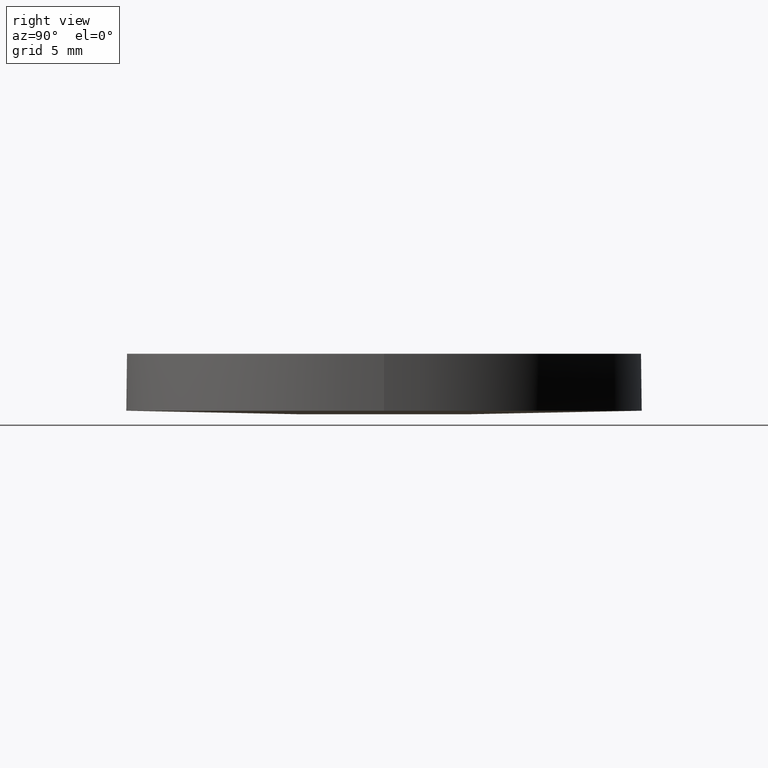
[diagram: clean part render]
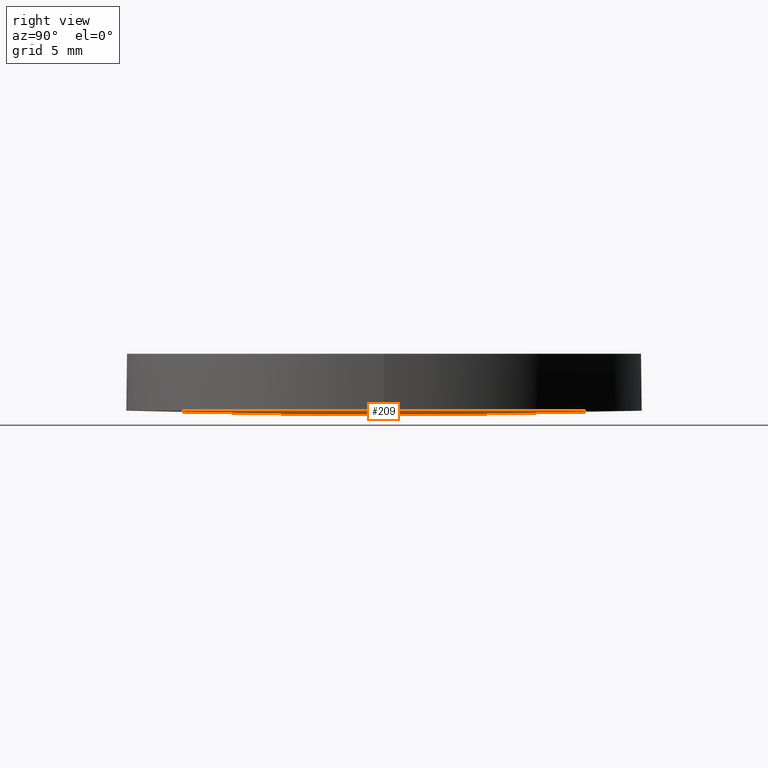
[diagram: same view with one face highlighted and labeled with its STEP entity id]
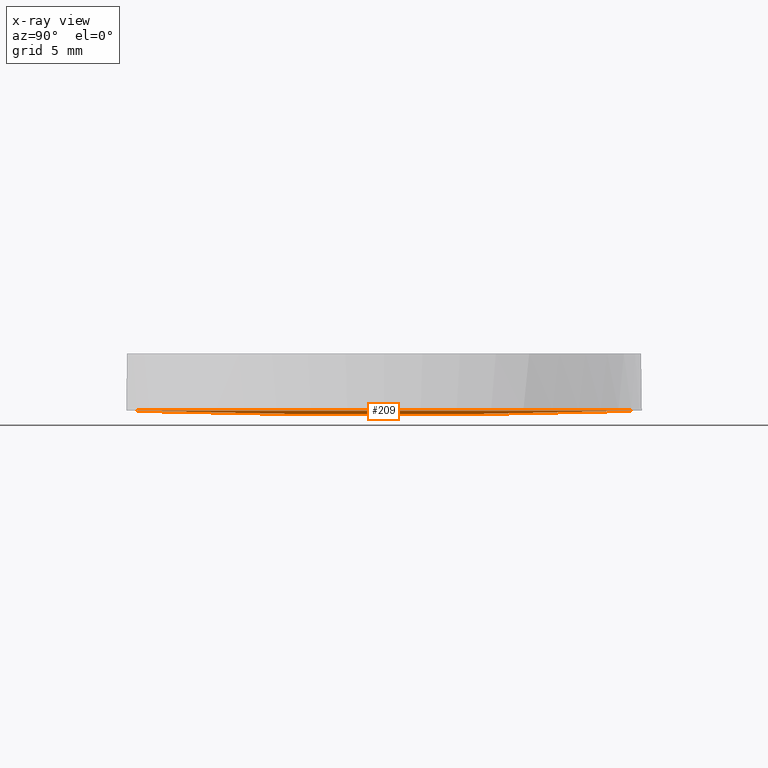
[diagram: x-ray of the same camera — body ghosted, the highlighted face saturated]
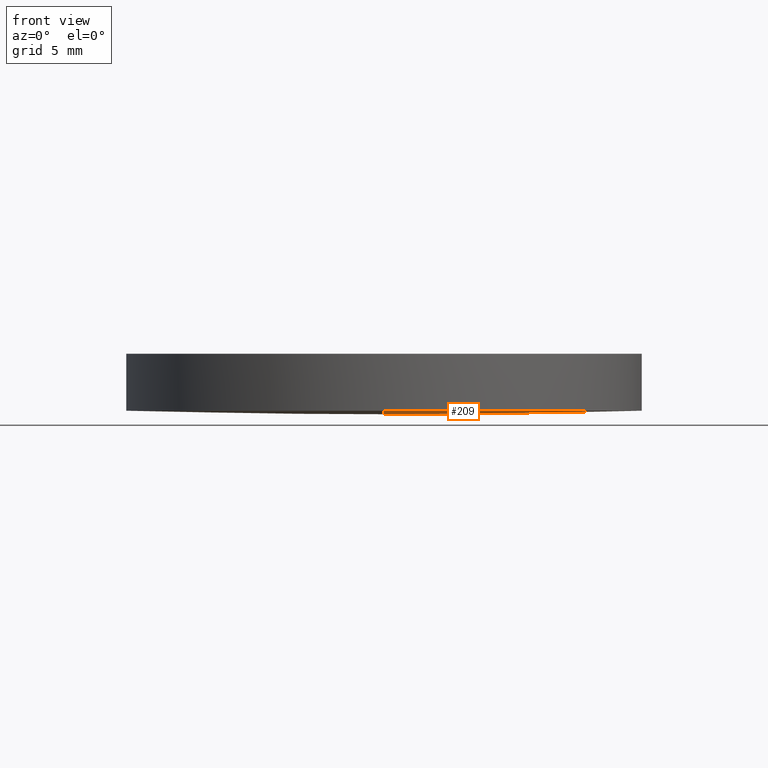
[diagram: same view with one face highlighted and labeled with its STEP entity id]
A machine part, right view. The second image highlights one B-rep face of the part: STEP entity #209.
The next image is the same camera in x-ray: the body ghosted, the highlighted face saturated — about 0% of this face is hidden behind the body in this view.
A second angle (front view) of the same face is appended — the face is thin or edge-on in the first view.
In plain terms, the highlighted face is a freeform B-spline surface patch.
Its self-contained STEP definition (entity closure, byte-faithful):
#1 = CARTESIAN_POINT ( 'NONE',  ( 12.69999999999999900, 2.442490654175340100E-015, 0.1943708192956540000 ) ) ;
#3 = EDGE_CURVE ( 'NONE', #42, #85, #97, .T. ) ;
#6 = DIRECTION ( 'NONE',  ( 2.800826601236829100E-016, -1.000000000000000000, 0.0000000000000000000 ) ) ;
#9 = CARTESIAN_POINT ( 'NONE',  ( 8.519990901291127000, 4.285487597691064500, -0.0007899738707676747800 ) ) ;
#26 = CARTESIAN_POINT ( 'NONE',  ( 4.257523415242414600, 12.85235154755344000, 0.1990633331476209800 ) ) ;
#27 = CARTESIAN_POINT ( 'NONE',  ( 12.77004763216025500, 12.85235154755343800, 0.3956790587314284500 ) ) ;
#31 = CARTESIAN_POINT ( 'NONE',  ( 1.561092886320984200E-013, 4.285487597691062700, -0.06637567002445760000 ) ) ;
#38 = DIRECTION ( 'NONE',  ( 1.000000000000000000, 0.0000000000000000000, 0.0000000000000000000 ) ) ;
#42 = VERTEX_POINT ( 'NONE', #127 ) ;
#60 = CARTESIAN_POINT ( 'NONE',  ( 4.257523415242421700, -12.85235154755348600, 0.1990633331476209800 ) ) ;
#77 = VERTEX_POINT ( 'NONE', #183 ) ;
#78 = CARTESIAN_POINT ( 'NONE',  ( 12.77821942835044700, 4.285487597691066200, 0.1303658736990742400 ) ) ;
#85 = VERTEX_POINT ( 'NONE', #1 ) ;
#90 = CIRCLE ( 'NONE', #163, 12.69999999999999900 ) ;
#91 = EDGE_CURVE ( 'NONE', #85, #77, #90, .T. ) ;
#95 = CARTESIAN_POINT ( 'NONE',  ( 4.260247885395269700, -4.285487597691111500, -0.06637567002445765600 ) ) ;
#97 = CIRCLE ( 'NONE', #157, 12.69999999999999900 ) ;
#102 = EDGE_CURVE ( 'NONE', #77, #42, #187, .T. ) ;
#106 = ORIENTED_EDGE ( 'NONE', *, *, #3, .T. ) ;
#115 =( BOUNDED_SURFACE ( )  B_SPLINE_SURFACE ( 3, 3, ( 
 ( #131, #60, #190, #212 ),
 ( #189, #95, #119, #134 ),
 ( #31, #173, #9, #78 ),
 ( #210, #26, #174, #27 ) ),
 .UNSPECIFIED., .F., .F., .T. ) 
 B_SPLINE_SURFACE_WITH_KNOTS ( ( 4, 4 ),
 ( 4, 4 ),
 ( 0.0000000000000000000, 1.000000000000000000 ),
 ( 0.0000000000000000000, 1.000000000000000000 ),
 .UNSPECIFIED. ) 
 GEOMETRIC_REPRESENTATION_ITEM ( )  RATIONAL_B_SPLINE_SURFACE ( (
 ( 1.000000000000000000, 0.9999209952859029500, 0.9999209952859029500, 1.000000000000000000),
 ( 0.9996802195451444100, 0.9996012400952107900, 0.9996012400952107900, 0.9996802195451444100),
 ( 0.9996802195451444100, 0.9996012400952107900, 0.9996012400952107900, 0.9996802195451444100),
 ( 1.000000000000000000, 0.9999209952859029500, 0.9999209952859029500, 1.000000000000000000) ) ) 
 REPRESENTATION_ITEM ( '' )  SURFACE ( )  );
#118 = ORIENTED_EDGE ( 'NONE', *, *, #91, .T. ) ;
#119 = CARTESIAN_POINT ( 'NONE',  ( 8.519990901291130600, -4.285487597691109800, -0.0007899738707687589900 ) ) ;
#124 = EDGE_LOOP ( 'NONE', ( #118, #172, #106 ) ) ;
#127 = CARTESIAN_POINT ( 'NONE',  ( 1.536894163389856000E-013, 12.69999999999961700, 0.1943708192956423200 ) ) ;
#131 = CARTESIAN_POINT ( 'NONE',  ( 1.608450511172748200E-013, -12.85235154755348600, 0.1990633331476199300 ) ) ;
#134 = CARTESIAN_POINT ( 'NONE',  ( 12.77821942835044800, -4.285487597691109800, 0.1303658736990731500 ) ) ;
#142 = DIRECTION ( 'NONE',  ( 1.000000000000000000, 1.776356839400250500E-015, 0.0000000000000000000 ) ) ;
#148 = AXIS2_PLACEMENT_3D ( 'NONE', #150, #208, #6 ) ;
#150 = CARTESIAN_POINT ( 'NONE',  ( 5.684341886080800200E-014, 0.0000000000000000000, 415.0000000000000600 ) ) ;
#157 = AXIS2_PLACEMENT_3D ( 'NONE', #162, #164, #142 ) ;
#159 = CARTESIAN_POINT ( 'NONE',  ( 4.996003610813200500E-016, 2.442490654175340100E-015, 0.1943708192956540000 ) ) ;
#162 = CARTESIAN_POINT ( 'NONE',  ( 4.996003610813200500E-016, 2.442490654175340100E-015, 0.1943708192956540000 ) ) ;
#163 = AXIS2_PLACEMENT_3D ( 'NONE', #159, #180, #38 ) ;
#164 = DIRECTION ( 'NONE',  ( -0.0000000000000000000, -0.0000000000000000000, -1.000000000000000000 ) ) ;
#172 = ORIENTED_EDGE ( 'NONE', *, *, #102, .T. ) ;
#173 = CARTESIAN_POINT ( 'NONE',  ( 4.260247885395267000, 4.285487597691062700, -0.06637567002445657300 ) ) ;
#174 = CARTESIAN_POINT ( 'NONE',  ( 8.514542283854401800, 12.85235154755344000, 0.2646070866077315200 ) ) ;
#180 = DIRECTION ( 'NONE',  ( -0.0000000000000000000, -0.0000000000000000000, -1.000000000000000000 ) ) ;
#183 = CARTESIAN_POINT ( 'NONE',  ( 1.608035159061269200E-013, -12.69999999999961700, 0.1943708192956423200 ) ) ;
#187 = CIRCLE ( 'NONE', #148, 415.0000000000000600 ) ;
#189 = CARTESIAN_POINT ( 'NONE',  ( 1.585098701646751900E-013, -4.285487597691113300, -0.06637567002445868300 ) ) ;
#190 = CARTESIAN_POINT ( 'NONE',  ( 8.514542283854408900, -12.85235154755348600, 0.2646070866077315200 ) ) ;
#191 = FACE_OUTER_BOUND ( 'NONE', #124, .T. ) ;
#208 = DIRECTION ( 'NONE',  ( 1.000000000000000000, 2.800826601236830100E-016, 2.420484202686870100E-016 ) ) ;
#209 = ADVANCED_FACE ( 'NONE', ( #191 ), #115, .T. ) ;
#210 = CARTESIAN_POINT ( 'NONE',  ( 1.536456094967078300E-013, 12.85235154755343400, 0.1990633331476199300 ) ) ;
#212 = CARTESIAN_POINT ( 'NONE',  ( 12.77004763216026200, -12.85235154755348200, 0.3956790587314284500 ) ) ;